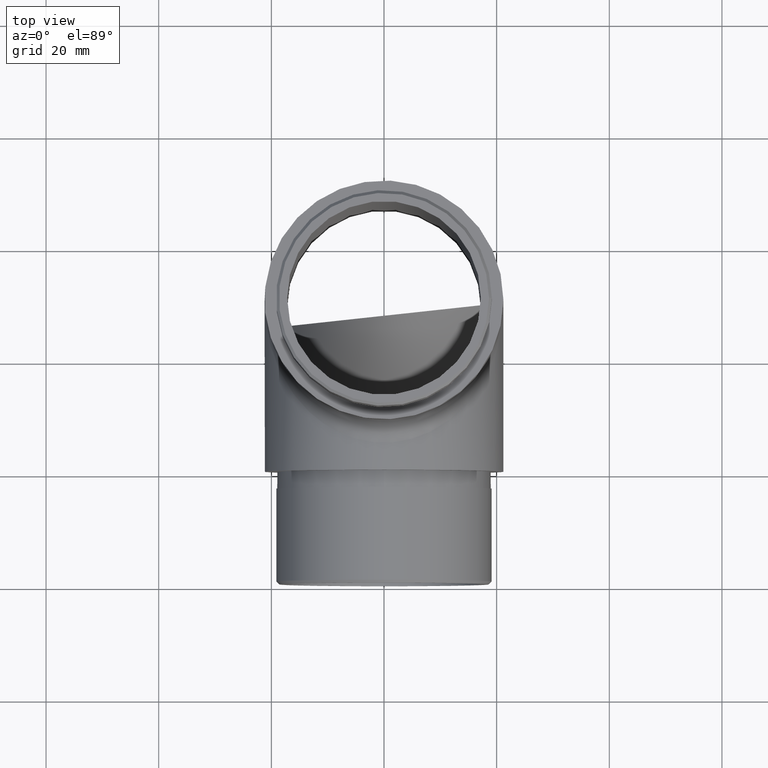
[diagram: clean part render]
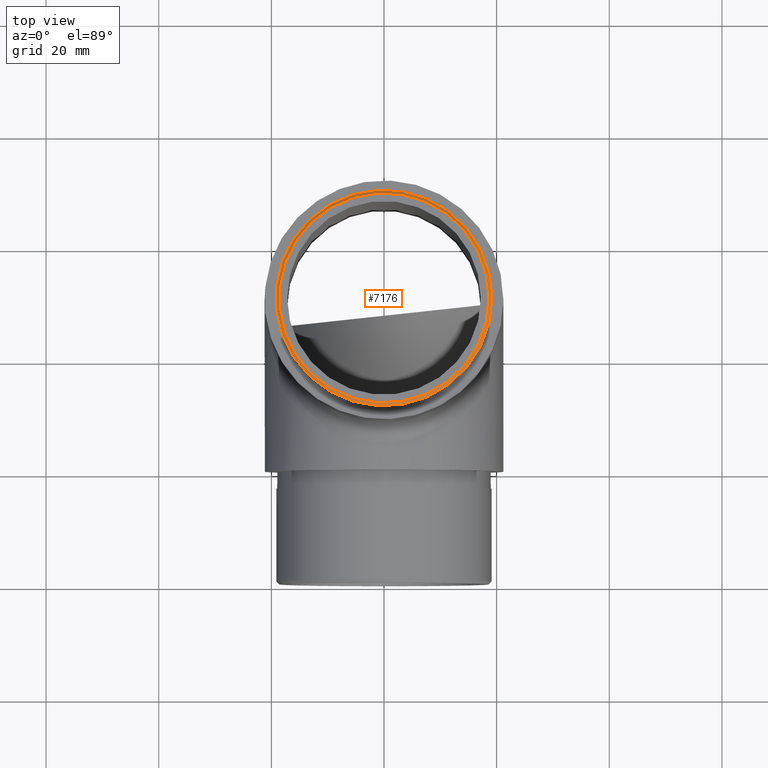
[diagram: same view with one face highlighted and labeled with its STEP entity id]
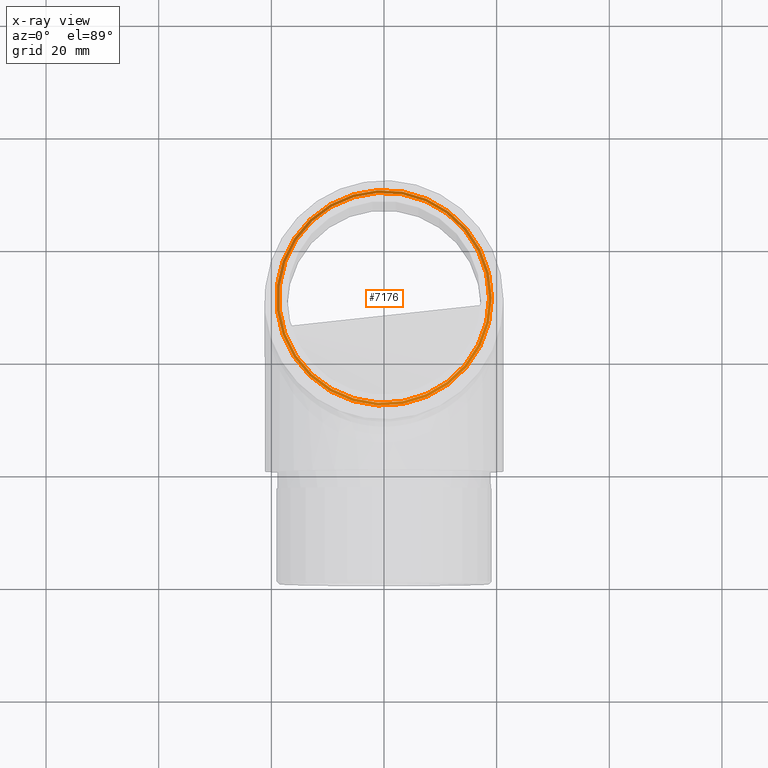
[diagram: x-ray of the same camera — body ghosted, the highlighted face saturated]
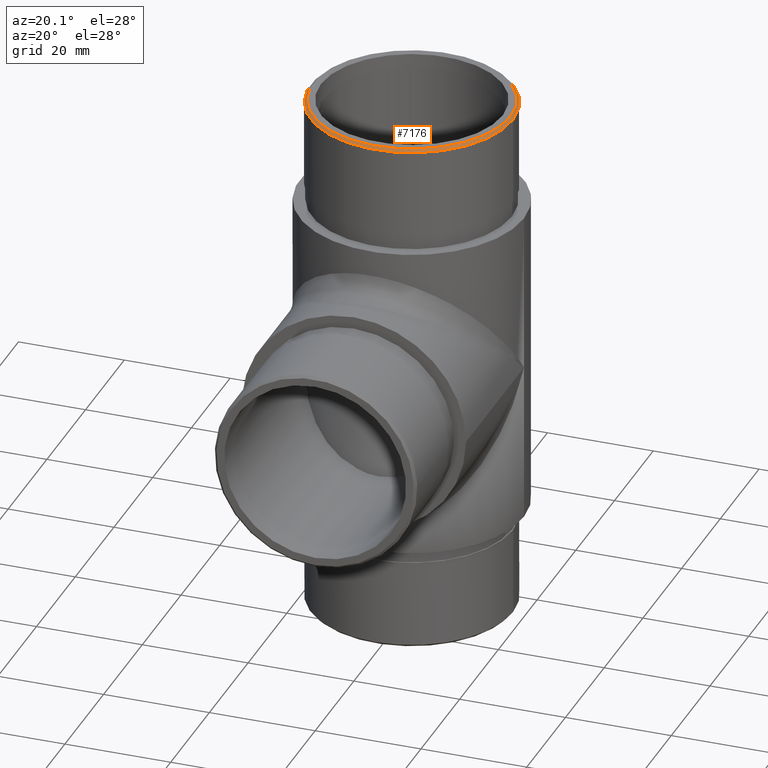
[diagram: same view with one face highlighted and labeled with its STEP entity id]
A machine part, top view. The second image highlights one B-rep face of the part: STEP entity #7176.
The next image is the same camera in x-ray: the body ghosted, the highlighted face saturated — about 0% of this face is hidden behind the body in this view.
A second angle (auxiliary view) of the same face is appended — the face is thin or edge-on in the first view.
In plain terms, the highlighted conical surface has half-angle 45 deg.
Its self-contained STEP definition (entity closure, byte-faithful):
#442 = DIRECTION ( 'NONE',  ( 0.0000000000000000000, 0.0000000000000000000, 1.000000000000000000 ) ) ;
#452 = AXIS2_PLACEMENT_3D ( 'NONE', #3440, #11814, #3899 ) ;
#1552 = CARTESIAN_POINT ( 'NONE',  ( 0.0000000000000000000, 50.00000000000000000, 50.00000000000000000 ) ) ;
#1582 = AXIS2_PLACEMENT_3D ( 'NONE', #10264, #8202, #11330 ) ;
#1626 = EDGE_CURVE ( 'NONE', #8629, #8629, #3475, .T. ) ;
#2981 = FACE_BOUND ( 'NONE', #6970, .T. ) ;
#3423 = CIRCLE ( 'NONE', #1582, 19.15000000000000200 ) ;
#3440 = CARTESIAN_POINT ( 'NONE',  ( 0.0000000000000000000, 50.00000000000000000, 50.00000000000000000 ) ) ;
#3475 = CIRCLE ( 'NONE', #9501, 18.64999999999999900 ) ;
#3577 = ORIENTED_EDGE ( 'NONE', *, *, #11939, .F. ) ;
#3899 = DIRECTION ( 'NONE',  ( -1.000000000000000000, 0.0000000000000000000, 0.0000000000000000000 ) ) ;
#4535 = EDGE_LOOP ( 'NONE', ( #3577 ) ) ;
#4933 = CARTESIAN_POINT ( 'NONE',  ( 19.15000000000000200, 50.00000000000000000, 49.49999999999997900 ) ) ;
#5519 = VERTEX_POINT ( 'NONE', #4933 ) ;
#6970 = EDGE_LOOP ( 'NONE', ( #11704 ) ) ;
#7176 = ADVANCED_FACE ( 'NONE', ( #9862, #2981 ), #10856, .T. ) ;
#7703 = DIRECTION ( 'NONE',  ( 1.000000000000000000, 0.0000000000000000000, 0.0000000000000000000 ) ) ;
#8202 = DIRECTION ( 'NONE',  ( 0.0000000000000000000, 0.0000000000000000000, -1.000000000000000000 ) ) ;
#8629 = VERTEX_POINT ( 'NONE', #11207 ) ;
#9501 = AXIS2_PLACEMENT_3D ( 'NONE', #1552, #442, #7703 ) ;
#9862 = FACE_OUTER_BOUND ( 'NONE', #4535, .T. ) ;
#10264 = CARTESIAN_POINT ( 'NONE',  ( 0.0000000000000000000, 50.00000000000000000, 49.49999999999997900 ) ) ;
#10856 = CONICAL_SURFACE ( 'NONE', #452, 18.64999999999999900, 0.7853981633974309600 ) ;
#11207 = CARTESIAN_POINT ( 'NONE',  ( 18.64999999999999900, 50.00000000000000000, 50.00000000000000000 ) ) ;
#11330 = DIRECTION ( 'NONE',  ( 1.000000000000000000, 0.0000000000000000000, 0.0000000000000000000 ) ) ;
#11704 = ORIENTED_EDGE ( 'NONE', *, *, #1626, .F. ) ;
#11814 = DIRECTION ( 'NONE',  ( 0.0000000000000000000, 0.0000000000000000000, -1.000000000000000000 ) ) ;
#11939 = EDGE_CURVE ( 'NONE', #5519, #5519, #3423, .T. ) ;